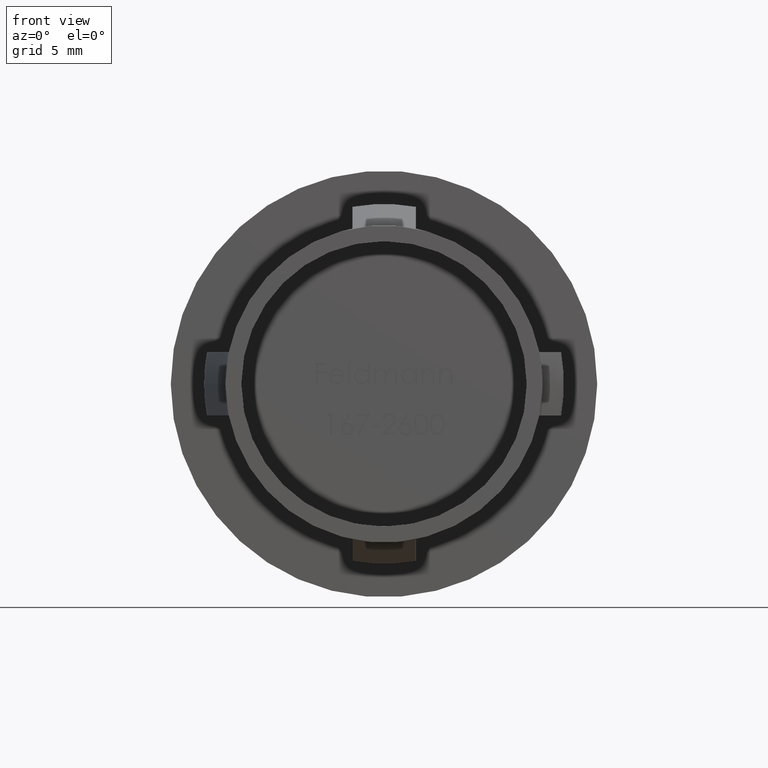
[diagram: clean part render]
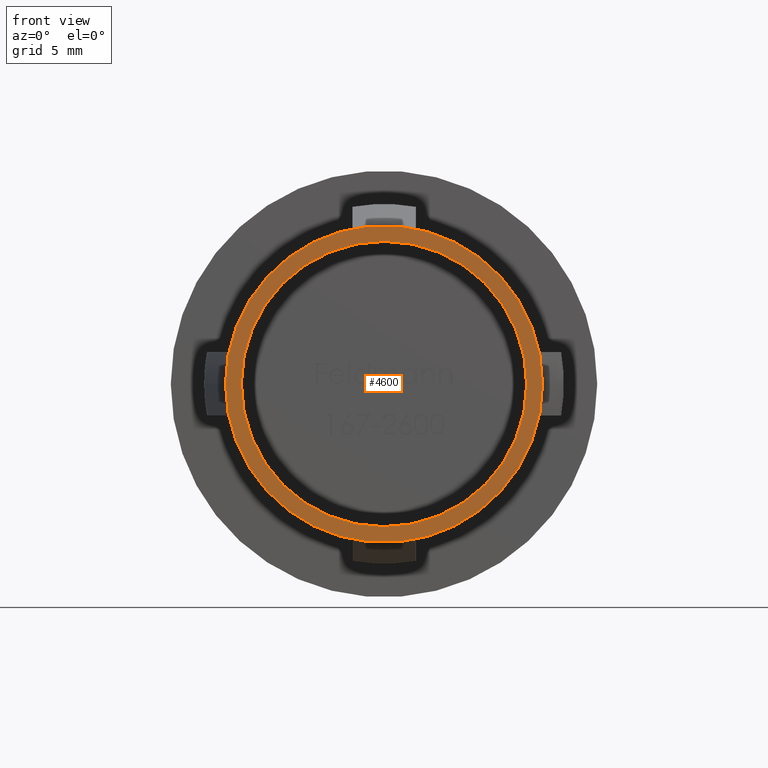
[diagram: same view with one face highlighted and labeled with its STEP entity id]
A machine part, front view. The second image highlights one B-rep face of the part: STEP entity #4600.
In plain terms, the highlighted planar face has unit normal (0, 1, -0).
Its self-contained STEP definition (entity closure, byte-faithful):
#217 = CARTESIAN_POINT ( 'NONE',  ( 9.000000000000000000, -6.613092715395709439E-16, 1.102182119232617714E-15 ) ) ;
#847 = CIRCLE ( 'NONE', #11448, 10.00000000000000355 ) ;
#876 = CARTESIAN_POINT ( 'NONE',  ( -1.557750728515432986E-15, 0.000000000000000000, 0.000000000000000000 ) ) ;
#2496 = EDGE_CURVE ( 'NONE', #14109, #11569, #847, .T. ) ;
#3068 = DIRECTION ( 'NONE',  ( -1.000000000000000000, 7.347880794884121462E-17, 0.000000000000000000 ) ) ;
#3104 = EDGE_CURVE ( 'NONE', #4378, #13013, #5942, .T. ) ;
#3373 = EDGE_LOOP ( 'NONE', ( #14140, #11159 ) ) ;
#3665 = CARTESIAN_POINT ( 'NONE',  ( -1.557750728515432986E-15, 0.000000000000000000, 0.000000000000000000 ) ) ;
#3728 = ORIENTED_EDGE ( 'NONE', *, *, #3104, .T. ) ;
#4182 = DIRECTION ( 'NONE',  ( -1.000000000000000000, 7.347880794884120229E-17, 0.000000000000000000 ) ) ;
#4378 = VERTEX_POINT ( 'NONE', #6649 ) ;
#4600 = ADVANCED_FACE ( 'NONE', ( #6601, #12074 ), #13092, .F. ) ;
#5035 = AXIS2_PLACEMENT_3D ( 'NONE', #3665, #6983, #12595 ) ;
#5218 = DIRECTION ( 'NONE',  ( 7.347880794884120229E-17, 1.000000000000000000, -0.000000000000000000 ) ) ;
#5374 = DIRECTION ( 'NONE',  ( 7.347880794884120229E-17, 1.000000000000000000, -0.000000000000000000 ) ) ;
#5942 = CIRCLE ( 'NONE', #8903, 9.000000000000001776 ) ;
#6601 = FACE_BOUND ( 'NONE', #11762, .T. ) ;
#6649 = CARTESIAN_POINT ( 'NONE',  ( -9.000000000000003553, 6.613092715395709439E-16, 0.000000000000000000 ) ) ;
#6983 = DIRECTION ( 'NONE',  ( 7.347880794884120229E-17, 1.000000000000000000, -0.000000000000000000 ) ) ;
#7518 = AXIS2_PLACEMENT_3D ( 'NONE', #10905, #5374, #4182 ) ;
#7643 = DIRECTION ( 'NONE',  ( 7.347880794884120229E-17, 1.000000000000000000, -0.000000000000000000 ) ) ;
#7911 = CIRCLE ( 'NONE', #12837, 9.000000000000001776 ) ;
#8249 = CARTESIAN_POINT ( 'NONE',  ( -1.557750728515432986E-15, 0.000000000000000000, 0.000000000000000000 ) ) ;
#8579 = DIRECTION ( 'NONE',  ( -1.000000000000000000, 7.347880794884120229E-17, 0.000000000000000000 ) ) ;
#8903 = AXIS2_PLACEMENT_3D ( 'NONE', #11929, #5218, #8579 ) ;
#9185 = CIRCLE ( 'NONE', #5035, 10.00000000000000355 ) ;
#9316 = CARTESIAN_POINT ( 'NONE',  ( -10.00000000000000533, 7.347880794884123680E-16, 0.000000000000000000 ) ) ;
#9366 = ORIENTED_EDGE ( 'NONE', *, *, #13584, .T. ) ;
#9487 = DIRECTION ( 'NONE',  ( -1.000000000000000000, 7.347880794884120229E-17, 0.000000000000000000 ) ) ;
#10269 = EDGE_CURVE ( 'NONE', #11569, #14109, #9185, .T. ) ;
#10905 = CARTESIAN_POINT ( 'NONE',  ( 9.000000000000000000, 3.673940397442076138E-17, 0.000000000000000000 ) ) ;
#11159 = ORIENTED_EDGE ( 'NONE', *, *, #2496, .F. ) ;
#11448 = AXIS2_PLACEMENT_3D ( 'NONE', #876, #7643, #3068 ) ;
#11569 = VERTEX_POINT ( 'NONE', #9316 ) ;
#11590 = DIRECTION ( 'NONE',  ( 7.347880794884120229E-17, 1.000000000000000000, -0.000000000000000000 ) ) ;
#11762 = EDGE_LOOP ( 'NONE', ( #3728, #9366 ) ) ;
#11831 = CARTESIAN_POINT ( 'NONE',  ( 10.00000000000000178, -7.347880794884123680E-16, 1.224646799147353454E-15 ) ) ;
#11929 = CARTESIAN_POINT ( 'NONE',  ( -1.557750728515432986E-15, 0.000000000000000000, 0.000000000000000000 ) ) ;
#12074 = FACE_OUTER_BOUND ( 'NONE', #3373, .T. ) ;
#12595 = DIRECTION ( 'NONE',  ( -1.000000000000000000, 7.347880794884121462E-17, 0.000000000000000000 ) ) ;
#12837 = AXIS2_PLACEMENT_3D ( 'NONE', #8249, #11590, #9487 ) ;
#13013 = VERTEX_POINT ( 'NONE', #217 ) ;
#13092 = PLANE ( 'NONE',  #7518 ) ;
#13584 = EDGE_CURVE ( 'NONE', #13013, #4378, #7911, .T. ) ;
#14109 = VERTEX_POINT ( 'NONE', #11831 ) ;
#14140 = ORIENTED_EDGE ( 'NONE', *, *, #10269, .F. ) ;